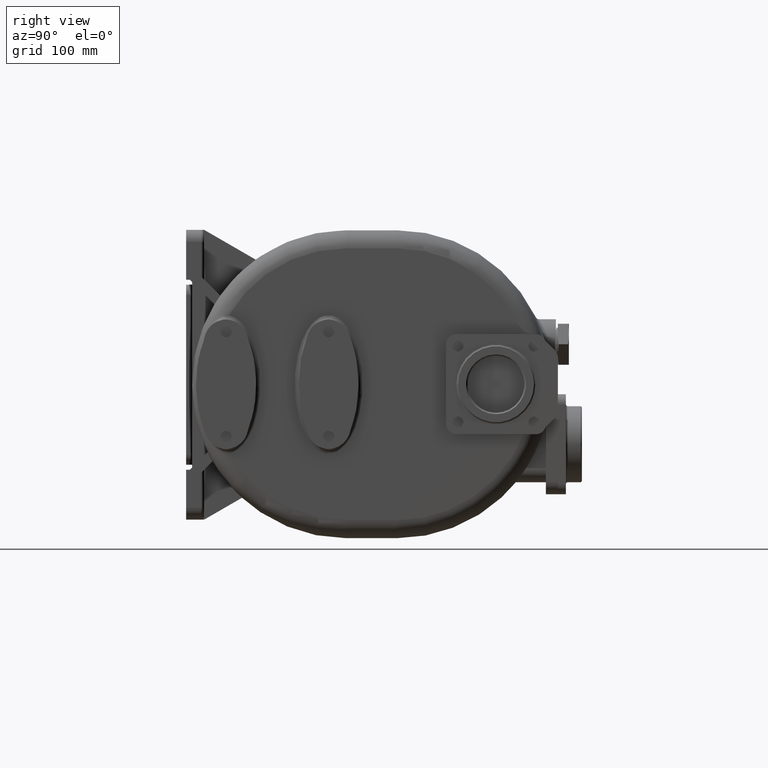
[diagram: clean part render]
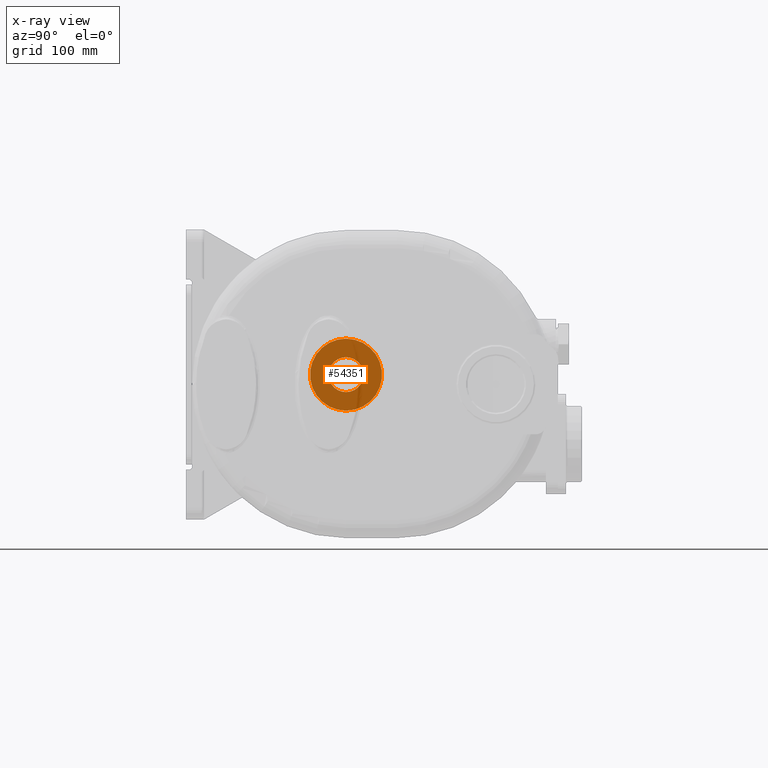
[diagram: x-ray — body ghosted, one internal face saturated and labeled with its STEP entity id]
A machine part, right view, then the same camera in x-ray: the body is ghosted and one INTERNAL B-rep face — a face not visible from any outside direction — is saturated and labeled: STEP entity #54351.
In plain terms, the highlighted planar face has unit normal (-1, 0, 0).
Its self-contained STEP definition (entity closure, byte-faithful):
#14847=CARTESIAN_POINT('',(-3.705E2,1.6E2,0.E0));
#14848=DIRECTION('',(-1.E0,0.E0,0.E0));
#14849=DIRECTION('',(0.E0,0.E0,-1.E0));
#14850=AXIS2_PLACEMENT_3D('',#14847,#14848,#14849);
#14852=CARTESIAN_POINT('',(-3.705E2,1.6E2,0.E0));
#14853=DIRECTION('',(-1.E0,0.E0,0.E0));
#14854=DIRECTION('',(0.E0,0.E0,1.E0));
#14855=AXIS2_PLACEMENT_3D('',#14852,#14853,#14854);
#14857=CARTESIAN_POINT('',(-3.705E2,1.6E2,0.E0));
#14858=DIRECTION('',(1.E0,0.E0,0.E0));
#14859=DIRECTION('',(0.E0,0.E0,-1.E0));
#14860=AXIS2_PLACEMENT_3D('',#14857,#14858,#14859);
#14862=CARTESIAN_POINT('',(-3.705E2,1.6E2,0.E0));
#14863=DIRECTION('',(1.E0,0.E0,0.E0));
#14864=DIRECTION('',(0.E0,0.E0,1.E0));
#14865=AXIS2_PLACEMENT_3D('',#14862,#14863,#14864);
#30598=CARTESIAN_POINT('',(-3.705E2,1.6E2,-1.75E1));
#30599=CARTESIAN_POINT('',(-3.705E2,1.6E2,1.75E1));
#30600=VERTEX_POINT('',#30598);
#30601=VERTEX_POINT('',#30599);
#30654=CARTESIAN_POINT('',(-3.705E2,1.6E2,-3.6E1));
#30655=CARTESIAN_POINT('',(-3.705E2,1.6E2,3.6E1));
#30656=VERTEX_POINT('',#30654);
#30657=VERTEX_POINT('',#30655);
#54335=CARTESIAN_POINT('',(-3.705E2,1.6E2,0.E0));
#54336=DIRECTION('',(-1.E0,0.E0,0.E0));
#54337=DIRECTION('',(0.E0,-1.E0,0.E0));
#54338=AXIS2_PLACEMENT_3D('',#54335,#54336,#54337);
#54339=PLANE('',#54338);
#54340=ORIENTED_EDGE('',*,*,#54325,.F.);
#54342=ORIENTED_EDGE('',*,*,#54341,.F.);
#54343=EDGE_LOOP('',(#54340,#54342));
#54344=FACE_OUTER_BOUND('',#54343,.F.);
#54346=ORIENTED_EDGE('',*,*,#54345,.F.);
#54348=ORIENTED_EDGE('',*,*,#54347,.F.);
#54349=EDGE_LOOP('',(#54346,#54348));
#54350=FACE_BOUND('',#54349,.F.);
#54351=ADVANCED_FACE('',(#54344,#54350),#54339,.T.);
#14851=CIRCLE('',#14850,3.6E1);
#14856=CIRCLE('',#14855,3.6E1);
#14861=CIRCLE('',#14860,1.75E1);
#14866=CIRCLE('',#14865,1.75E1);
#54325=EDGE_CURVE('',#30656,#30657,#14851,.T.);
#54341=EDGE_CURVE('',#30657,#30656,#14856,.T.);
#54345=EDGE_CURVE('',#30600,#30601,#14861,.T.);
#54347=EDGE_CURVE('',#30601,#30600,#14866,.T.);